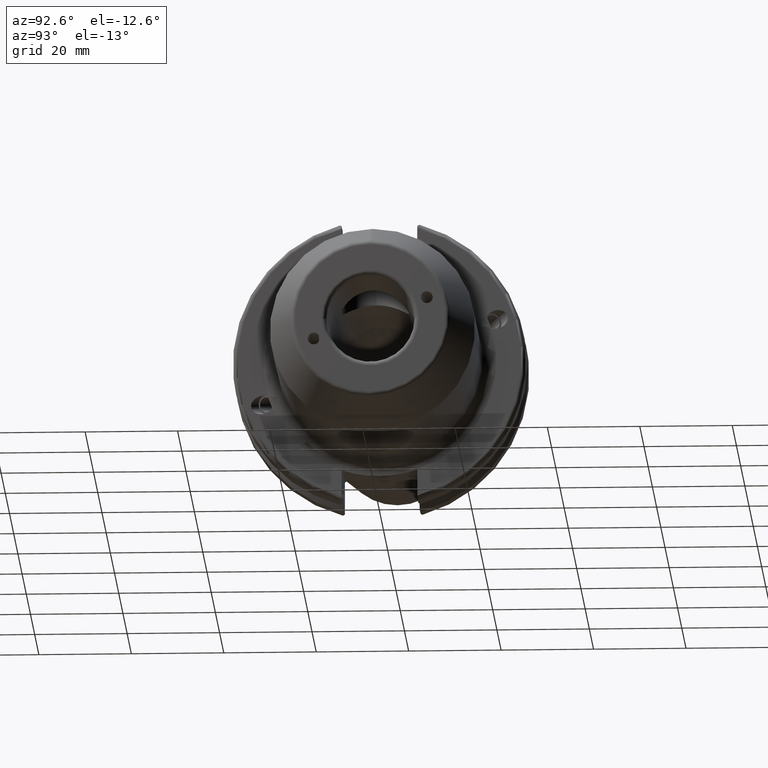
[diagram: clean part render]
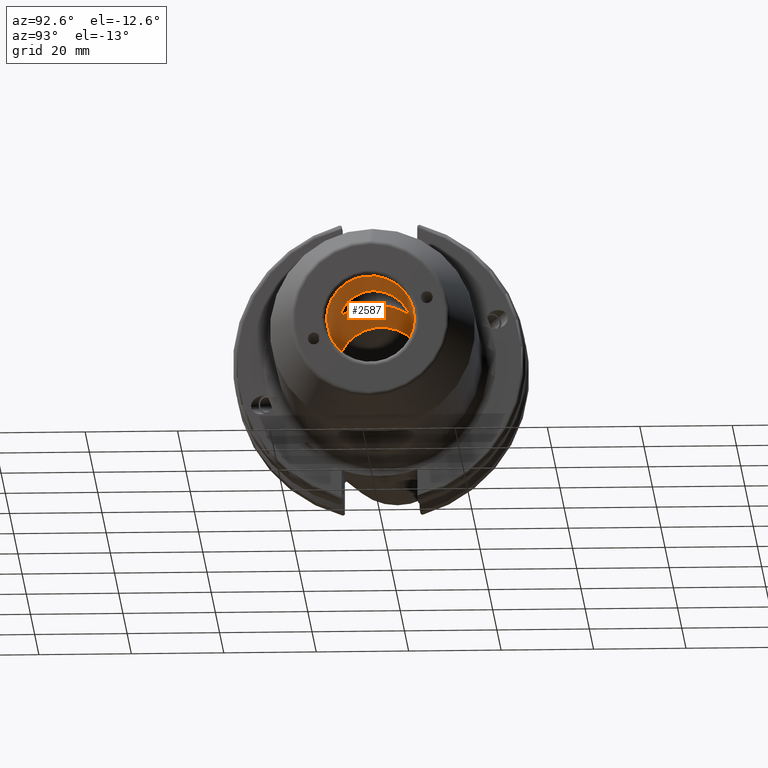
[diagram: same view with one face highlighted and labeled with its STEP entity id]
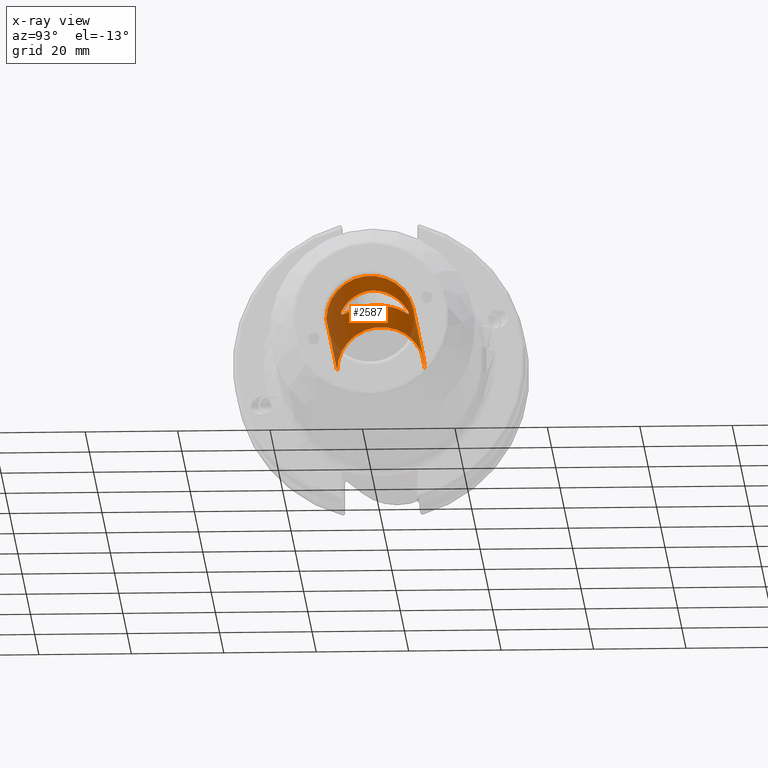
[diagram: x-ray of the same camera — body ghosted, the highlighted face saturated]
A machine part, auxiliary view. The second image highlights one B-rep face of the part: STEP entity #2587.
The next image is the same camera in x-ray: the body ghosted, the highlighted face saturated — about 7% of this face is hidden behind the body in this view.
In plain terms, the highlighted cylindrical surface (partial cylindrical patch) has radius 9.525 mm, axis along (-1, 0, 0).
Its self-contained STEP definition (entity closure, byte-faithful):
#95=CARTESIAN_POINT('',(1.1E1,0.E0,0.E0));
#96=DIRECTION('',(-1.E0,0.E0,0.E0));
#97=DIRECTION('',(0.E0,-1.E0,0.E0));
#98=AXIS2_PLACEMENT_3D('',#95,#96,#97);
#100=CARTESIAN_POINT('',(4.725E1,0.E0,9.525E0));
#101=CARTESIAN_POINT('',(4.725E1,4.723765448386E-1,9.525E0));
#102=CARTESIAN_POINT('',(4.716253899033E1,1.412307184224E0,9.457166504152E0));
#103=CARTESIAN_POINT('',(4.673102274152E1,2.839074558364E0,9.128169614191E0));
#104=CARTESIAN_POINT('',(4.607551425605E1,4.061653023678E0,8.645765452198E0));
#105=CARTESIAN_POINT('',(4.523073073765E1,5.119054105114E0,8.059928742004E0));
#106=CARTESIAN_POINT('',(4.422358160007E1,5.993575314730E0,7.425526409870E0));
#107=CARTESIAN_POINT('',(4.307055432442E1,6.675296124152E0,6.810671063852E0));
#108=CARTESIAN_POINT('',(4.181467040896E1,7.140222819684E0,6.311011616095E0));
#109=CARTESIAN_POINT('',(4.048160828059E1,7.361965534900E0,6.044099596304E0));
#110=CARTESIAN_POINT('',(3.933598271847E1,7.358348760776E0,6.047962766576E0));
#111=CARTESIAN_POINT('',(3.807943730732E1,7.165927056315E0,6.281547739291E0));
#112=CARTESIAN_POINT('',(3.670838922486E1,6.674257035106E0,6.814624474669E0));
#113=CARTESIAN_POINT('',(3.551049939669E1,5.945363092060E0,7.465079590688E0));
#114=CARTESIAN_POINT('',(3.453678705986E1,5.082021413102E0,8.082092234372E0));
#115=CARTESIAN_POINT('',(3.370805005044E1,4.035188230668E0,8.657650785558E0));
#116=CARTESIAN_POINT('',(3.306331863182E1,2.823006841848E0,9.132486728948E0));
#117=CARTESIAN_POINT('',(3.263705554958E1,1.407114856505E0,9.457481530339E0));
#118=CARTESIAN_POINT('',(3.255E1,4.711016145172E-1,9.525E0));
#119=CARTESIAN_POINT('',(3.255E1,0.E0,9.525E0));
#121=CARTESIAN_POINT('',(3.255E1,0.E0,9.525E0));
#122=CARTESIAN_POINT('',(3.255E1,-4.726609025777E-1,9.525E0));
#123=CARTESIAN_POINT('',(3.263750125090E1,-1.413221169876E0,9.457122160673E0));
#124=CARTESIAN_POINT('',(3.307003496942E1,-2.841555508268E0,9.127407070948E0));
#125=CARTESIAN_POINT('',(3.372592485005E1,-4.064638424186E0,8.644598322422E0));
#126=CARTESIAN_POINT('',(3.457438460709E1,-5.122790395266E0,8.056866059815E0));
#127=CARTESIAN_POINT('',(3.556841873176E1,-5.990126563515E0,7.429789059719E0));
#128=CARTESIAN_POINT('',(3.680565659020E1,-6.720877221806E0,6.768153902085E0));
#129=CARTESIAN_POINT('',(3.817357465069E1,-7.188151264154E0,6.255119118483E0));
#130=CARTESIAN_POINT('',(3.942756941208E1,-7.365019785755E0,6.039735183411E0));
#131=CARTESIAN_POINT('',(4.058189638935E1,-7.354044184492E0,6.054040328164E0));
#132=CARTESIAN_POINT('',(4.191822046045E1,-7.111265954874E0,6.344298005673E0));
#133=CARTESIAN_POINT('',(4.315087480770E1,-6.635244767211E0,6.849940631300E0));
#134=CARTESIAN_POINT('',(4.428186406690E1,-5.949660704930E0,7.460448477964E0));
#135=CARTESIAN_POINT('',(4.526433938877E1,-5.081894552955E0,8.082719322770E0));
#136=CARTESIAN_POINT('',(4.609206135086E1,-4.034588991083E0,8.657777307131E0));
#137=CARTESIAN_POINT('',(4.673666617868E1,-2.823136986355E0,9.132463672448E0));
#138=CARTESIAN_POINT('',(4.716295773896E1,-1.407037638699E0,9.457494970509E0));
#139=CARTESIAN_POINT('',(4.725E1,-4.710881316515E-1,9.525E0));
#140=CARTESIAN_POINT('',(4.725E1,0.E0,9.525E0));
#147=DIRECTION('',(1.E0,0.E0,0.E0));
#148=VECTOR('',#147,5.1E1);
#149=CARTESIAN_POINT('',(1.1E1,9.525E0,0.E0));
#150=LINE('',#149,#148);
#151=DIRECTION('',(1.E0,0.E0,0.E0));
#152=VECTOR('',#151,5.1E1);
#153=CARTESIAN_POINT('',(1.1E1,-9.525E0,0.E0));
#154=LINE('',#153,#152);
#170=CARTESIAN_POINT('',(6.2E1,0.E0,0.E0));
#171=DIRECTION('',(-1.E0,0.E0,0.E0));
#172=DIRECTION('',(0.E0,-1.E0,0.E0));
#173=AXIS2_PLACEMENT_3D('',#170,#171,#172);
#2430=CARTESIAN_POINT('',(6.2E1,-9.525E0,0.E0));
#2432=VERTEX_POINT('',#2430);
#2436=CARTESIAN_POINT('',(6.2E1,9.525E0,0.E0));
#2438=VERTEX_POINT('',#2436);
#2462=CARTESIAN_POINT('',(1.1E1,-9.525E0,0.E0));
#2463=CARTESIAN_POINT('',(1.1E1,9.525E0,0.E0));
#2464=VERTEX_POINT('',#2462);
#2465=VERTEX_POINT('',#2463);
#2474=VERTEX_POINT('',#100);
#2475=VERTEX_POINT('',#119);
#2567=CARTESIAN_POINT('',(6.56E1,0.E0,0.E0));
#2568=DIRECTION('',(-1.E0,0.E0,0.E0));
#2569=DIRECTION('',(0.E0,1.E0,0.E0));
#2570=AXIS2_PLACEMENT_3D('',#2567,#2568,#2569);
#2571=CYLINDRICAL_SURFACE('',#2570,9.525E0);
#2572=ORIENTED_EDGE('',*,*,#2560,.F.);
#2574=ORIENTED_EDGE('',*,*,#2573,.T.);
#2576=ORIENTED_EDGE('',*,*,#2575,.T.);
#2578=ORIENTED_EDGE('',*,*,#2577,.F.);
#2579=EDGE_LOOP('',(#2572,#2574,#2576,#2578));
#2580=FACE_OUTER_BOUND('',#2579,.F.);
#2582=ORIENTED_EDGE('',*,*,#2581,.F.);
#2584=ORIENTED_EDGE('',*,*,#2583,.F.);
#2585=EDGE_LOOP('',(#2582,#2584));
#2586=FACE_BOUND('',#2585,.F.);
#2587=ADVANCED_FACE('',(#2580,#2586),#2571,.F.);
#99=CIRCLE('',#98,9.525E0);
#120=B_SPLINE_CURVE_WITH_KNOTS('',3,(#100,#101,#102,#103,#104,#105,#106,#107,
#108,#109,#110,#111,#112,#113,#114,#115,#116,#117,#118,#119),.UNSPECIFIED.,.F.,
.F.,(4,1,1,1,1,1,1,1,1,1,1,1,1,1,1,1,1,4),(0.E0,5.882352941176E-2,
1.176470588235E-1,1.764705882353E-1,2.352941176471E-1,2.941176470588E-1,
3.529411764706E-1,4.117647058824E-1,4.705882352941E-1,5.294117647059E-1,
5.882352941176E-1,6.470588235294E-1,7.058823529412E-1,7.647058823529E-1,
8.235294117647E-1,8.823529411765E-1,9.411764705882E-1,1.E0),.UNSPECIFIED.);
#141=B_SPLINE_CURVE_WITH_KNOTS('',3,(#121,#122,#123,#124,#125,#126,#127,#128,
#129,#130,#131,#132,#133,#134,#135,#136,#137,#138,#139,#140),.UNSPECIFIED.,.F.,
.F.,(4,1,1,1,1,1,1,1,1,1,1,1,1,1,1,1,1,4),(0.E0,5.882352941176E-2,
1.176470588235E-1,1.764705882353E-1,2.352941176471E-1,2.941176470588E-1,
3.529411764706E-1,4.117647058824E-1,4.705882352941E-1,5.294117647059E-1,
5.882352941176E-1,6.470588235294E-1,7.058823529412E-1,7.647058823529E-1,
8.235294117647E-1,8.823529411765E-1,9.411764705882E-1,1.E0),.UNSPECIFIED.);
#174=CIRCLE('',#173,9.525E0);
#2560=EDGE_CURVE('',#2464,#2465,#99,.T.);
#2573=EDGE_CURVE('',#2464,#2432,#154,.T.);
#2575=EDGE_CURVE('',#2432,#2438,#174,.T.);
#2577=EDGE_CURVE('',#2465,#2438,#150,.T.);
#2581=EDGE_CURVE('',#2474,#2475,#120,.T.);
#2583=EDGE_CURVE('',#2475,#2474,#141,.T.);